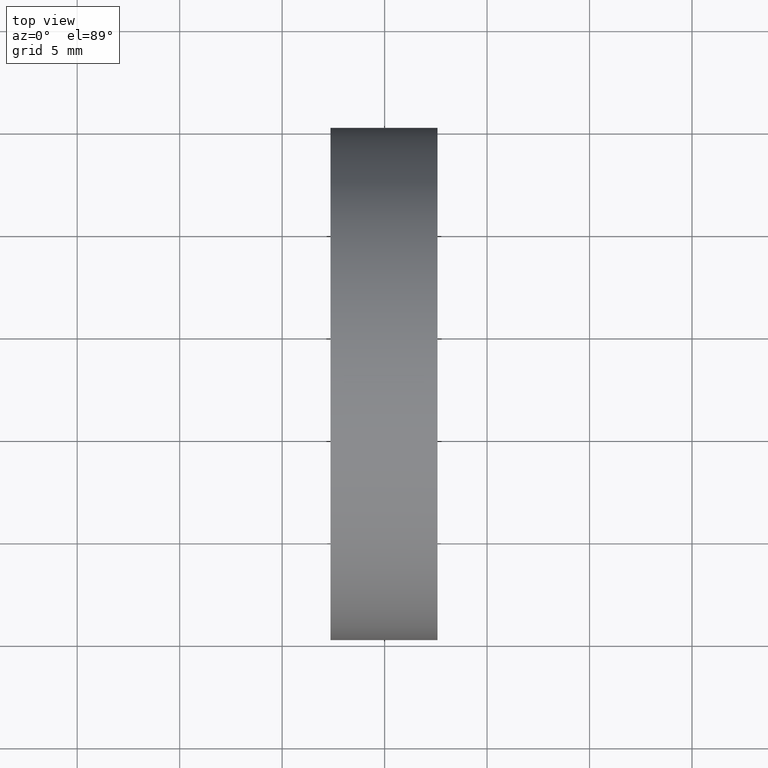
[diagram: clean part render]
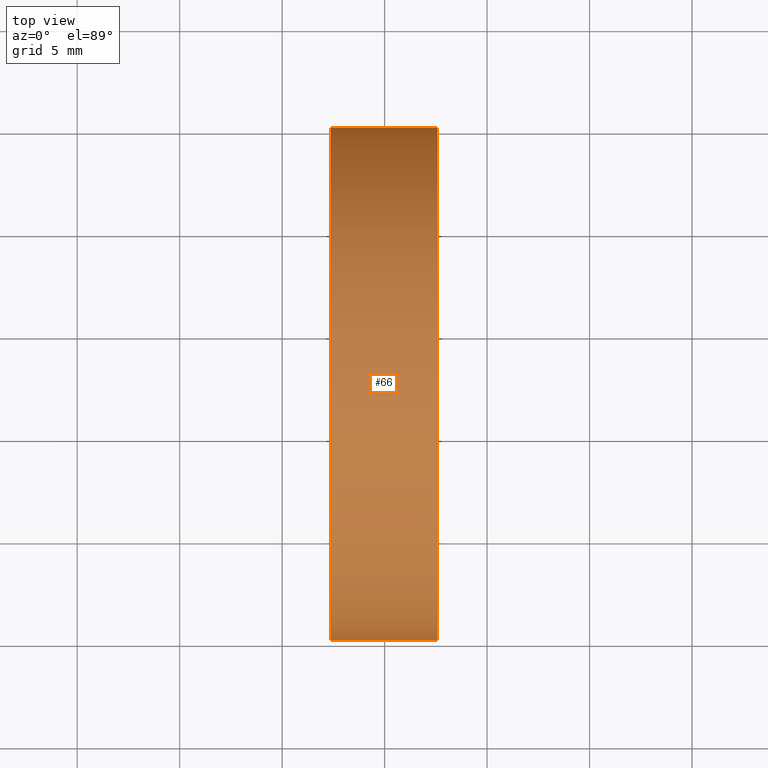
[diagram: same view with one face highlighted and labeled with its STEP entity id]
A machine part, top view. The second image highlights one B-rep face of the part: STEP entity #66.
In plain terms, the highlighted cylindrical surface (partial cylindrical patch) has radius 12.5 mm, axis along (-1, 0, -0).
Its self-contained STEP definition (entity closure, byte-faithful):
#5 = CARTESIAN_POINT ( 'NONE',  ( 55.00739462442118800, 45.07872591329309800, 1.530808498934191900E-015 ) ) ;
#6 = EDGE_CURVE ( 'NONE', #164, #68, #114, .T. ) ;
#12 = VERTEX_POINT ( 'NONE', #46 ) ;
#17 = DIRECTION ( 'NONE',  ( -1.000000000000000000, 4.853228644174421400E-016, -0.0000000000000000000 ) ) ;
#20 = CARTESIAN_POINT ( 'NONE',  ( 62.58283298949485400, 45.07872591329309800, 1.530808498934192500E-015 ) ) ;
#27 = EDGE_LOOP ( 'NONE', ( #141, #83, #51, #147 ) ) ;
#28 = DIRECTION ( 'NONE',  ( -5.551115123125780700E-016, -1.000000000000000000, 0.0000000000000000000 ) ) ;
#31 = DIRECTION ( 'NONE',  ( -1.000000000000000000, 4.853228644174421400E-016, -0.0000000000000000000 ) ) ;
#41 = EDGE_CURVE ( 'NONE', #100, #12, #43, .T. ) ;
#43 = LINE ( 'NONE', #5, #150 ) ;
#46 = CARTESIAN_POINT ( 'NONE',  ( 57.35819015802111700, 45.07872591329309100, 1.530808498934192300E-015 ) ) ;
#47 = DIRECTION ( 'NONE',  ( -5.551115123125784700E-016, -1.000000000000000000, 0.0000000000000000000 ) ) ;
#50 = AXIS2_PLACEMENT_3D ( 'NONE', #152, #31, #47 ) ;
#51 = ORIENTED_EDGE ( 'NONE', *, *, #127, .F. ) ;
#52 = EDGE_CURVE ( 'NONE', #164, #100, #85, .T. ) ;
#56 = DIRECTION ( 'NONE',  ( -1.000000000000000000, 4.853228644174421400E-016, -0.0000000000000000000 ) ) ;
#61 = CARTESIAN_POINT ( 'NONE',  ( 62.58283298949485400, 20.07872591329307700, 0.0000000000000000000 ) ) ;
#66 = ADVANCED_FACE ( 'NONE', ( #76 ), #157, .T. ) ;
#68 = VERTEX_POINT ( 'NONE', #77 ) ;
#70 = CARTESIAN_POINT ( 'NONE',  ( 55.00739462442118100, 32.57872591329309800, 0.0000000000000000000 ) ) ;
#74 = CIRCLE ( 'NONE', #50, 12.49999999999999600 ) ;
#76 = FACE_OUTER_BOUND ( 'NONE', #27, .T. ) ;
#77 = CARTESIAN_POINT ( 'NONE',  ( 57.35819015802110200, 20.07872591329309800, 0.0000000000000000000 ) ) ;
#78 = VECTOR ( 'NONE', #131, 1000.000000000000000 ) ;
#83 = ORIENTED_EDGE ( 'NONE', *, *, #41, .T. ) ;
#85 = CIRCLE ( 'NONE', #143, 12.50000000000000700 ) ;
#100 = VERTEX_POINT ( 'NONE', #20 ) ;
#104 = DIRECTION ( 'NONE',  ( -1.000000000000000000, 4.853228644174421400E-016, -0.0000000000000000000 ) ) ;
#114 = LINE ( 'NONE', #121, #78 ) ;
#117 = CARTESIAN_POINT ( 'NONE',  ( 62.58283298949485400, 32.57872591329309100, 0.0000000000000000000 ) ) ;
#121 = CARTESIAN_POINT ( 'NONE',  ( 55.00739462442117400, 20.07872591329309100, 0.0000000000000000000 ) ) ;
#127 = EDGE_CURVE ( 'NONE', #68, #12, #74, .T. ) ;
#131 = DIRECTION ( 'NONE',  ( -1.000000000000000000, 4.853228644174421400E-016, -0.0000000000000000000 ) ) ;
#141 = ORIENTED_EDGE ( 'NONE', *, *, #52, .T. ) ;
#143 = AXIS2_PLACEMENT_3D ( 'NONE', #117, #56, #144 ) ;
#144 = DIRECTION ( 'NONE',  ( 0.0000000000000000000, -1.000000000000000000, 0.0000000000000000000 ) ) ;
#147 = ORIENTED_EDGE ( 'NONE', *, *, #6, .F. ) ;
#150 = VECTOR ( 'NONE', #104, 1000.000000000000000 ) ;
#152 = CARTESIAN_POINT ( 'NONE',  ( 57.35819015802111000, 32.57872591329309800, 0.0000000000000000000 ) ) ;
#157 = CYLINDRICAL_SURFACE ( 'NONE', #165, 12.50000000000000400 ) ;
#164 = VERTEX_POINT ( 'NONE', #61 ) ;
#165 = AXIS2_PLACEMENT_3D ( 'NONE', #70, #17, #28 ) ;